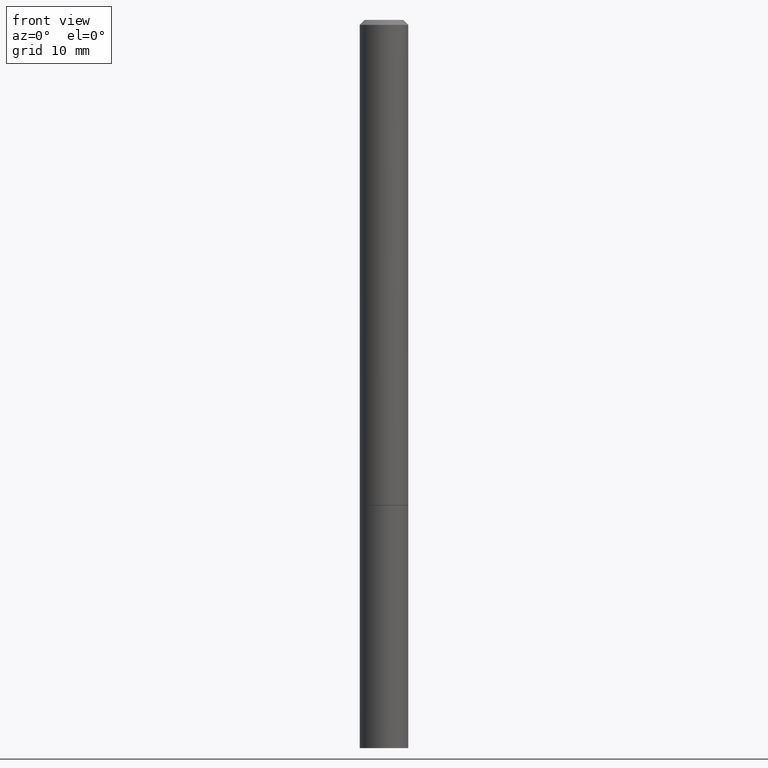
[diagram: clean part render]
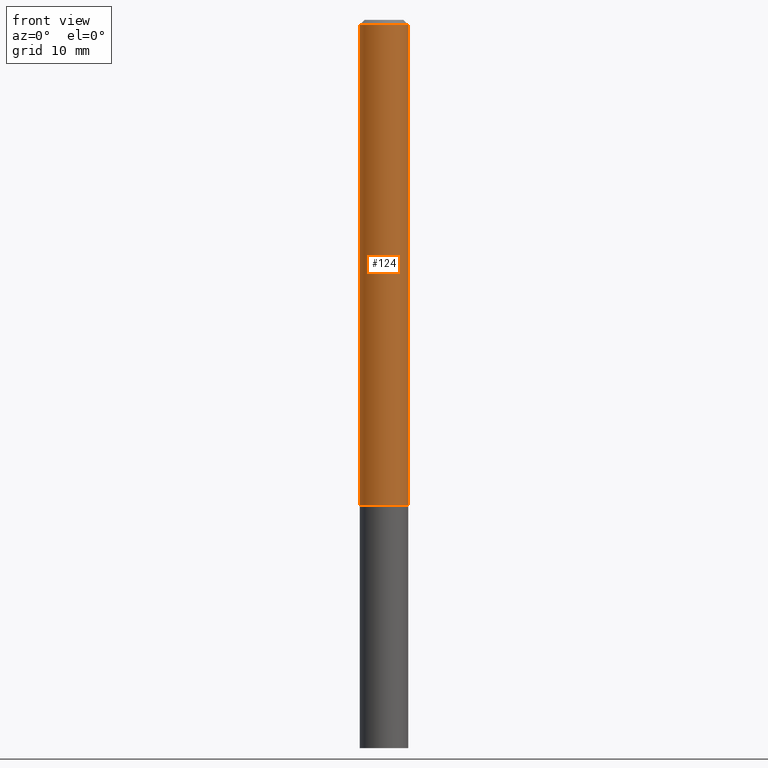
[diagram: same view with one face highlighted and labeled with its STEP entity id]
A machine part, front view. The second image highlights one B-rep face of the part: STEP entity #124.
In plain terms, the highlighted cylindrical surface (edge-blend (fillet) strip) has radius 2.5006 mm, axis along (-0, 0, 1).
Its self-contained STEP definition (entity closure, byte-faithful):
#13 = CYLINDRICAL_SURFACE ( 'NONE', #150, 0.09844999999999987095 ) ;
#23 = CARTESIAN_POINT ( 'NONE',  ( -0.09844999999999998197, -2.770130257119553156E-15, -1.967499999999999805 ) ) ;
#31 = CIRCLE ( 'NONE', #79, 0.09844999999999973217 ) ;
#36 = AXIS2_PLACEMENT_3D ( 'NONE', #266, #74, #183 ) ;
#74 = DIRECTION ( 'NONE',  ( -2.445468806185136597E-29, 3.491481338843145583E-15, 1.000000000000000000 ) ) ;
#79 = AXIS2_PLACEMENT_3D ( 'NONE', #273, #241, #134 ) ;
#90 = VERTEX_POINT ( 'NONE', #314 ) ;
#92 = VECTOR ( 'NONE', #331, 39.37007874015748143 ) ;
#98 = DIRECTION ( 'NONE',  ( 1.000000000000000000, -6.982962677686266711E-15, 4.876176775795936353E-29 ) ) ;
#103 = LINE ( 'NONE', #214, #236 ) ;
#114 = CARTESIAN_POINT ( 'NONE',  ( -0.09844999999999973217, 6.176430488413481772E-16, -0.02000000000000002470 ) ) ;
#119 = EDGE_CURVE ( 'NONE', #267, #90, #344, .T. ) ;
#124 = ADVANCED_FACE ( 'NONE', ( #294 ), #13, .T. ) ;
#134 = DIRECTION ( 'NONE',  ( 1.000000000000000000, -6.982962677686266711E-15, 0.000000000000000000 ) ) ;
#150 = AXIS2_PLACEMENT_3D ( 'NONE', #238, #353, #98 ) ;
#166 = EDGE_CURVE ( 'NONE', #336, #365, #31, .T. ) ;
#171 = ORIENTED_EDGE ( 'NONE', *, *, #119, .T. ) ;
#183 = DIRECTION ( 'NONE',  ( 1.000000000000000000, -6.982962677686265922E-15, 0.000000000000000000 ) ) ;
#189 = CARTESIAN_POINT ( 'NONE',  ( -0.09844999999999987095, 6.995293233558177160E-16, -4.842691596355948437E-30 ) ) ;
#190 = EDGE_LOOP ( 'NONE', ( #341, #171, #226, #304 ) ) ;
#195 = CARTESIAN_POINT ( 'NONE',  ( 0.09844999999999973217, -7.452456546574684343E-16, -0.02000000000000002470 ) ) ;
#214 = CARTESIAN_POINT ( 'NONE',  ( 0.09844999999999987095, -6.874726756182120670E-16, 4.800596035771092908E-30 ) ) ;
#215 = DIRECTION ( 'NONE',  ( -2.445468806185136877E-29, 3.491481338843145188E-15, 1.000000000000000000 ) ) ;
#217 = EDGE_CURVE ( 'NONE', #90, #365, #103, .T. ) ;
#226 = ORIENTED_EDGE ( 'NONE', *, *, #217, .T. ) ;
#236 = VECTOR ( 'NONE', #215, 39.37007874015748143 ) ;
#238 = CARTESIAN_POINT ( 'NONE',  ( 0.000000000000000000, 0.000000000000000000, 0.000000000000000000 ) ) ;
#239 = EDGE_CURVE ( 'NONE', #267, #336, #355, .T. ) ;
#241 = DIRECTION ( 'NONE',  ( -2.445468806185136597E-29, 3.491481338843145583E-15, 1.000000000000000000 ) ) ;
#266 = CARTESIAN_POINT ( 'NONE',  ( 4.811459876169255671E-29, -6.869489534173887122E-15, -1.967499999999999805 ) ) ;
#267 = VERTEX_POINT ( 'NONE', #23 ) ;
#273 = CARTESIAN_POINT ( 'NONE',  ( 4.890937612370279289E-31, -6.982962677686299005E-17, -0.02000000000000002470 ) ) ;
#294 = FACE_OUTER_BOUND ( 'NONE', #190, .T. ) ;
#304 = ORIENTED_EDGE ( 'NONE', *, *, #166, .F. ) ;
#314 = CARTESIAN_POINT ( 'NONE',  ( 0.09844999999999999585, -7.556962209792099682E-15, -1.967499999999999805 ) ) ;
#331 = DIRECTION ( 'NONE',  ( -2.445468806185136877E-29, 3.491481338843145188E-15, 1.000000000000000000 ) ) ;
#336 = VERTEX_POINT ( 'NONE', #114 ) ;
#341 = ORIENTED_EDGE ( 'NONE', *, *, #239, .F. ) ;
#344 = CIRCLE ( 'NONE', #36, 0.09844999999999999585 ) ;
#353 = DIRECTION ( 'NONE',  ( -2.445468806185136597E-29, 3.491481338843145583E-15, 1.000000000000000000 ) ) ;
#355 = LINE ( 'NONE', #189, #92 ) ;
#365 = VERTEX_POINT ( 'NONE', #195 ) ;